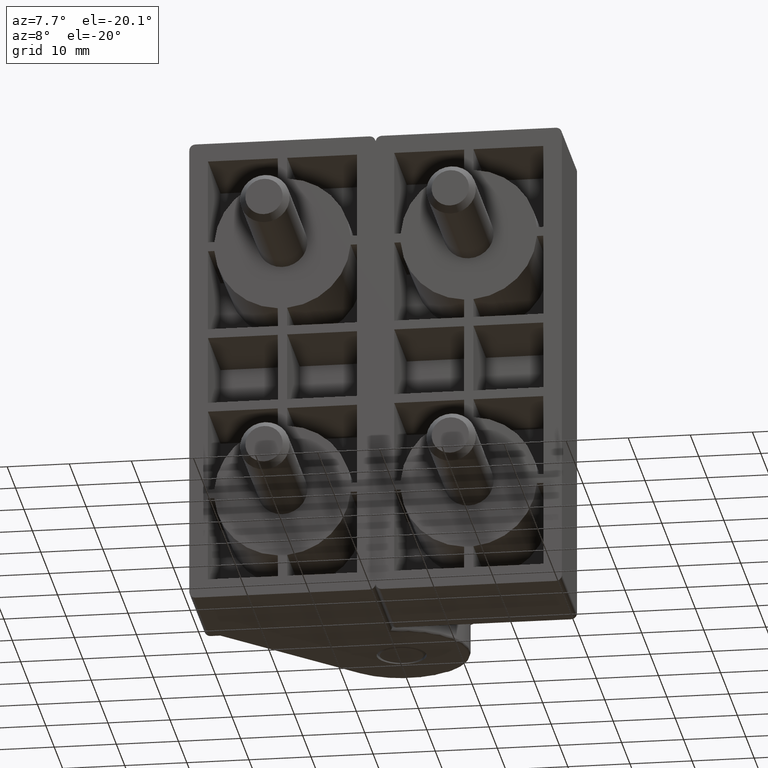
[diagram: clean part render]
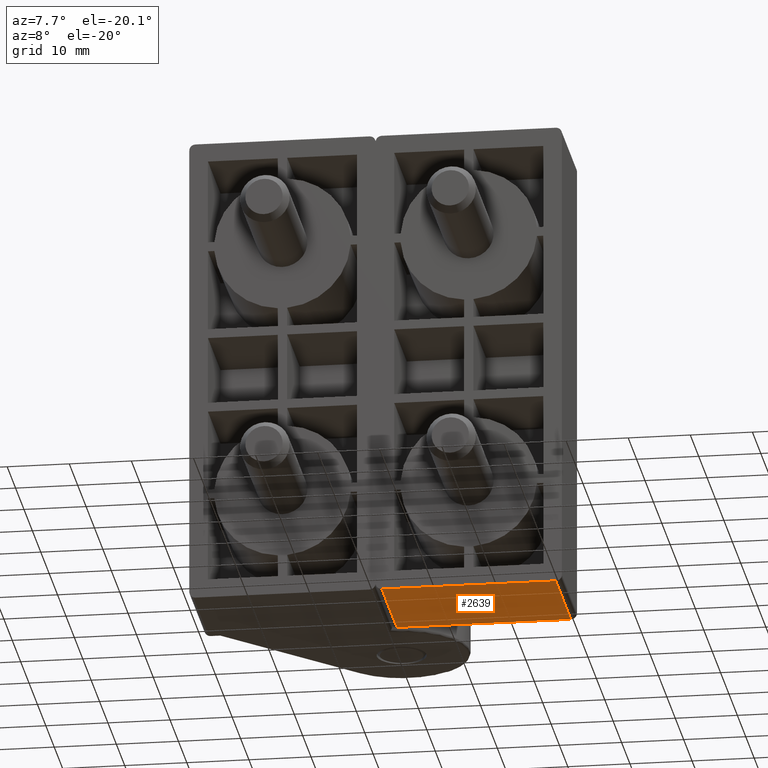
[diagram: same view with one face highlighted and labeled with its STEP entity id]
A machine part, auxiliary view. The second image highlights one B-rep face of the part: STEP entity #2639.
In plain terms, the highlighted planar face has unit normal (0, 0, 1).
Its self-contained STEP definition (entity closure, byte-faithful):
#99=LINE('',#4150,#342);
#100=LINE('',#4152,#343);
#101=LINE('',#4154,#344);
#102=LINE('',#4155,#345);
#342=VECTOR('',#3301,28.0000000000009);
#343=VECTOR('',#3302,17.999999999998);
#344=VECTOR('',#3303,28.0000000000009);
#345=VECTOR('',#3304,17.9999999999999);
#570=PLANE('',#2857);
#773=FACE_OUTER_BOUND('',#942,.T.);
#942=EDGE_LOOP('',(#1988,#1989,#1990,#1991));
#1306=VERTEX_POINT('',#4148);
#1307=VERTEX_POINT('',#4149);
#1308=VERTEX_POINT('',#4151);
#1309=VERTEX_POINT('',#4153);
#1580=EDGE_CURVE('',#1306,#1307,#99,.T.);
#1581=EDGE_CURVE('',#1306,#1308,#100,.T.);
#1582=EDGE_CURVE('',#1309,#1308,#101,.T.);
#1583=EDGE_CURVE('',#1309,#1307,#102,.T.);
#1988=ORIENTED_EDGE('',*,*,#1580,.F.);
#1989=ORIENTED_EDGE('',*,*,#1581,.T.);
#1990=ORIENTED_EDGE('',*,*,#1582,.F.);
#1991=ORIENTED_EDGE('',*,*,#1583,.T.);
#2639=ADVANCED_FACE('',(#773),#570,.F.);
#2857=AXIS2_PLACEMENT_3D('',#4147,#3299,#3300);
#3299=DIRECTION('center_axis',(0.,0.,1.));
#3300=DIRECTION('ref_axis',(1.,0.,0.));
#3301=DIRECTION('',(1.,0.,0.));
#3302=DIRECTION('',(0.,1.,0.));
#3303=DIRECTION('',(-1.,-6.59194920870912E-14,0.));
#3304=DIRECTION('',(0.,-1.,0.));
#4147=CARTESIAN_POINT('Origin',(0.,0.,-38.5));
#4148=CARTESIAN_POINT('',(1.,-31.,-38.5));
#4149=CARTESIAN_POINT('',(29.0000000000009,-31.,-38.5));
#4150=CARTESIAN_POINT('',(0.,-31.,-38.5));
#4151=CARTESIAN_POINT('',(1.,-13.000000000002,-38.5));
#4152=CARTESIAN_POINT('',(1.,0.,-38.5));
#4153=CARTESIAN_POINT('',(29.0000000000009,-13.0000000000001,-38.5));
#4154=CARTESIAN_POINT('',(30.0000000000009,-13.0000000000001,-38.5));
#4155=CARTESIAN_POINT('',(29.0000000000009,0.,-38.5));